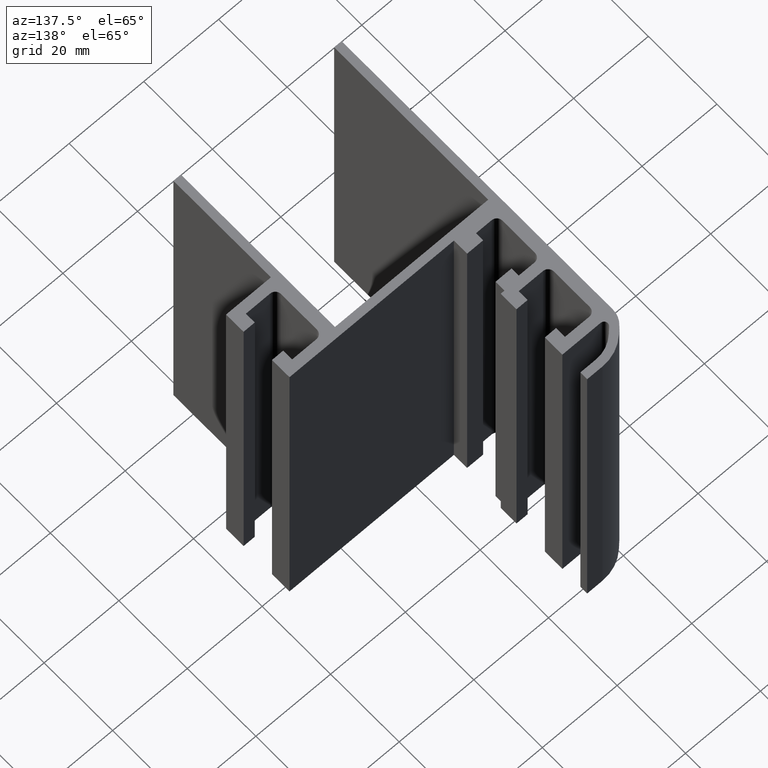
[diagram: clean part render]
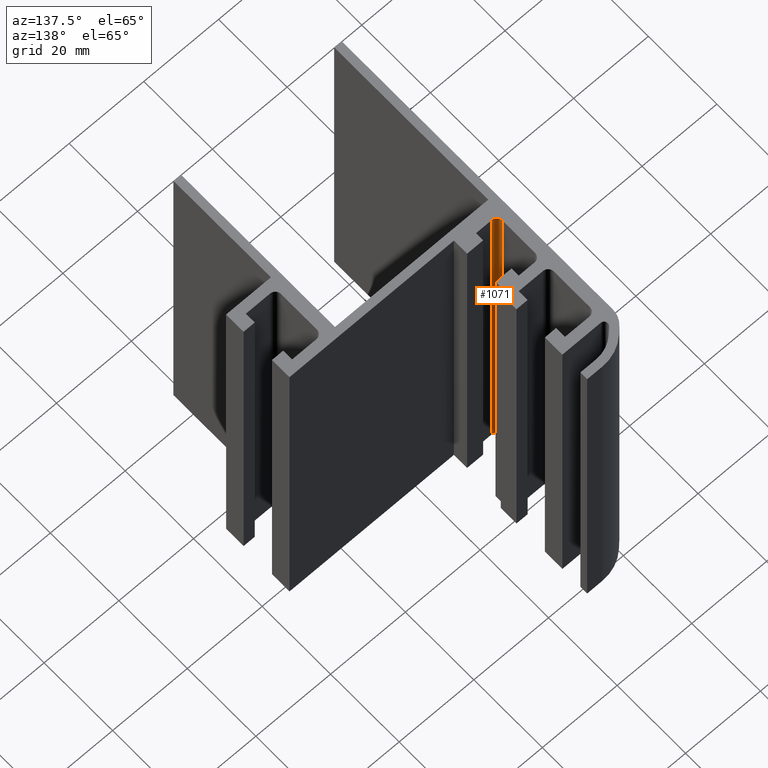
[diagram: same view with one face highlighted and labeled with its STEP entity id]
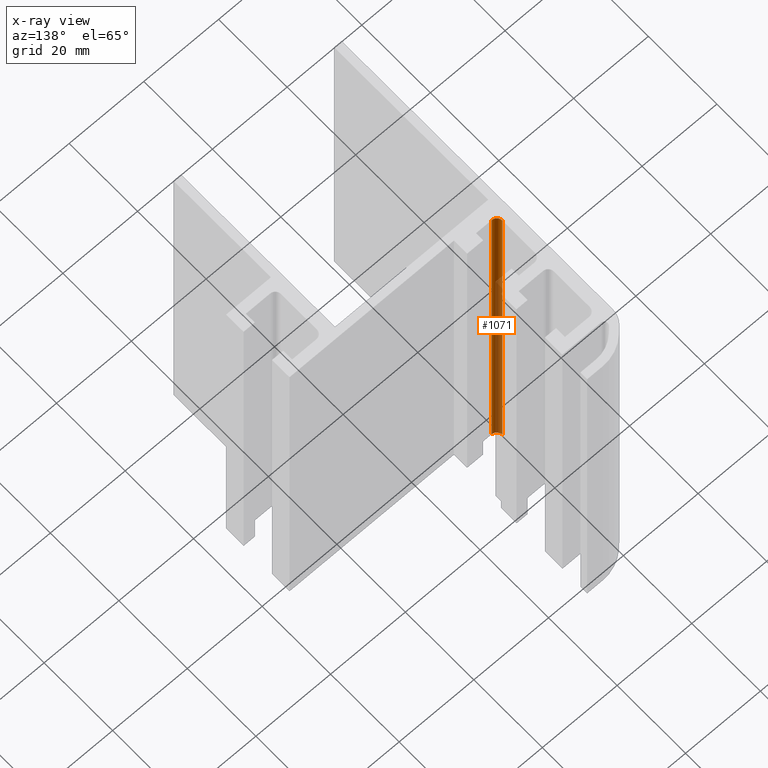
[diagram: x-ray of the same camera — body ghosted, the highlighted face saturated]
A machine part, auxiliary view. The second image highlights one B-rep face of the part: STEP entity #1071.
The next image is the same camera in x-ray: the body ghosted, the highlighted face saturated — about 46% of this face is hidden behind the body in this view.
In plain terms, the highlighted cylindrical surface (edge-blend (fillet) strip) has radius 1.5 mm, axis along (0, 0, 1).
Its self-contained STEP definition (entity closure, byte-faithful):
#17=CIRCLE('',#1131,1.5);
#18=CIRCLE('',#1132,1.5);
#36=CYLINDRICAL_SURFACE('',#1130,1.5);
#55=FACE_OUTER_BOUND('',#110,.T.);
#110=EDGE_LOOP('',(#738,#739,#740,#741));
#183=LINE('',#1547,#322);
#184=LINE('',#1553,#323);
#322=VECTOR('',#1247,100.);
#323=VECTOR('',#1254,100.);
#453=VERTEX_POINT('',#1543);
#454=VERTEX_POINT('',#1545);
#455=VERTEX_POINT('',#1549);
#456=VERTEX_POINT('',#1551);
#569=EDGE_CURVE('',#453,#454,#183,.T.);
#570=EDGE_CURVE('',#455,#453,#17,.T.);
#571=EDGE_CURVE('',#456,#454,#18,.T.);
#572=EDGE_CURVE('',#455,#456,#184,.T.);
#738=ORIENTED_EDGE('',*,*,#570,.T.);
#739=ORIENTED_EDGE('',*,*,#569,.T.);
#740=ORIENTED_EDGE('',*,*,#571,.F.);
#741=ORIENTED_EDGE('',*,*,#572,.F.);
#1071=ADVANCED_FACE('',(#55),#36,.F.);
#1130=AXIS2_PLACEMENT_3D('',#1548,#1248,#1249);
#1131=AXIS2_PLACEMENT_3D('',#1550,#1250,#1251);
#1132=AXIS2_PLACEMENT_3D('',#1552,#1252,#1253);
#1247=DIRECTION('',(0.,0.,1.));
#1248=DIRECTION('center_axis',(0.,0.,1.));
#1249=DIRECTION('ref_axis',(1.,1.1842378929335E-14,0.));
#1250=DIRECTION('center_axis',(0.,0.,-1.));
#1251=DIRECTION('ref_axis',(1.,1.1842378929335E-14,0.));
#1252=DIRECTION('center_axis',(0.,0.,-1.));
#1253=DIRECTION('ref_axis',(1.,1.1842378929335E-14,0.));
#1254=DIRECTION('',(0.,0.,1.));
#1543=CARTESIAN_POINT('',(-19.5000000000001,5.24999999999988,0.));
#1545=CARTESIAN_POINT('',(-19.5000000000001,5.24999999999988,100.));
#1547=CARTESIAN_POINT('',(-19.5000000000001,5.24999999999988,0.));
#1548=CARTESIAN_POINT('Origin',(-18.0000000000001,5.2499999999999,0.));
#1549=CARTESIAN_POINT('',(-18.0000000000001,3.74999999999989,0.));
#1550=CARTESIAN_POINT('Origin',(-18.0000000000001,5.2499999999999,0.));
#1551=CARTESIAN_POINT('',(-18.0000000000001,3.74999999999989,100.));
#1552=CARTESIAN_POINT('Origin',(-18.0000000000001,5.2499999999999,100.));
#1553=CARTESIAN_POINT('',(-18.0000000000001,3.74999999999989,0.));